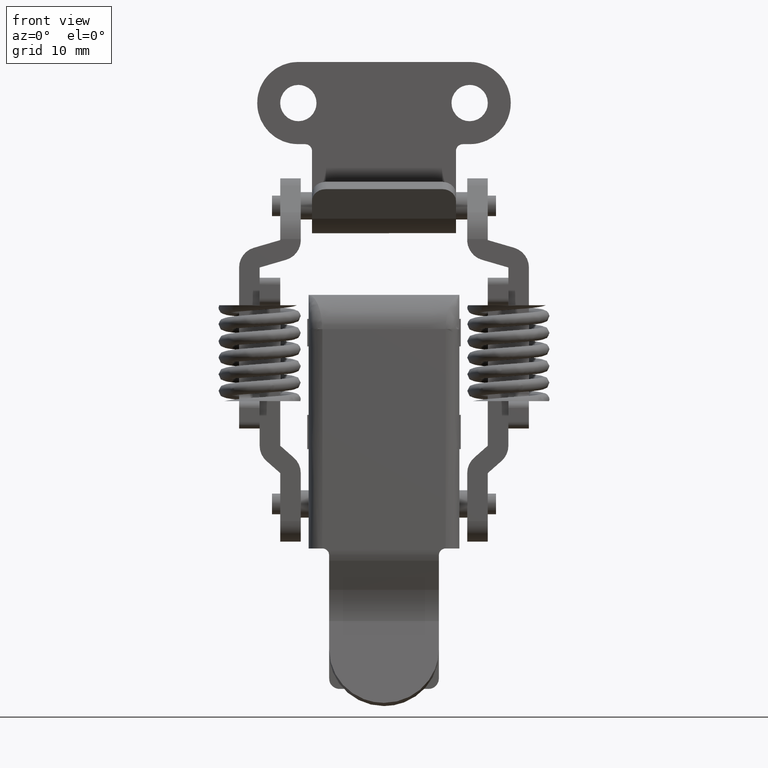
[diagram: clean part render]
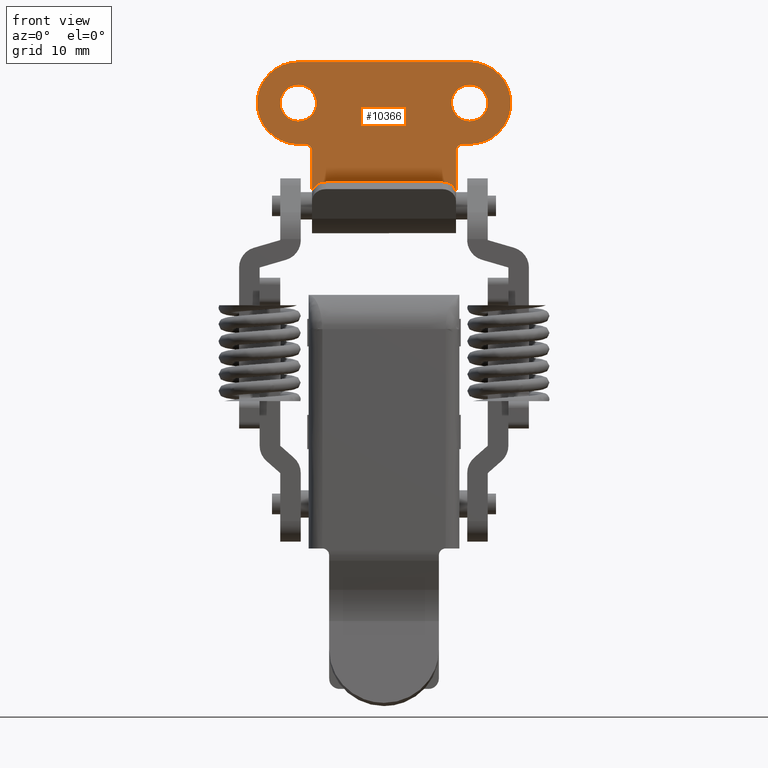
[diagram: same view with one face highlighted and labeled with its STEP entity id]
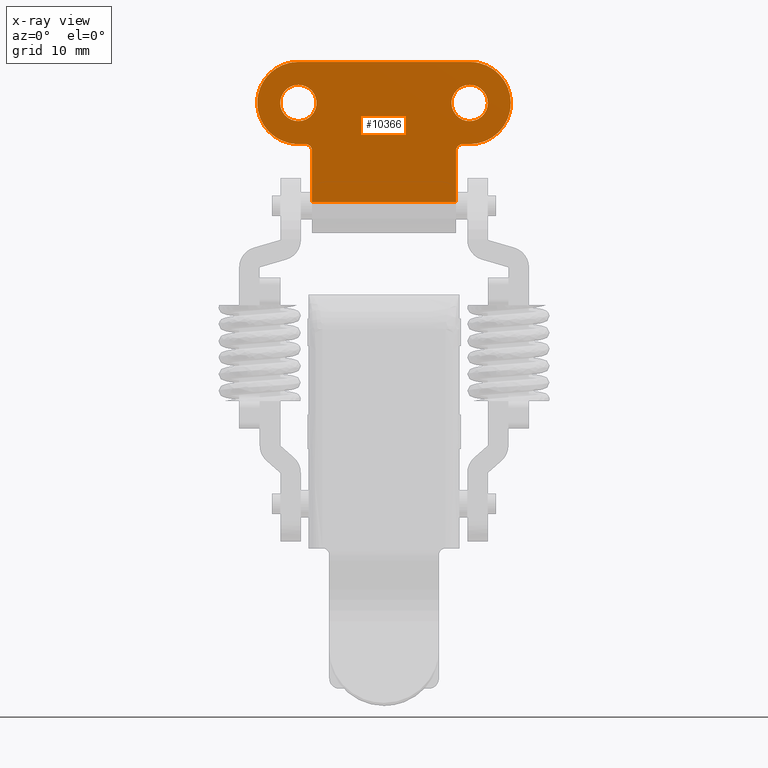
[diagram: x-ray of the same camera — body ghosted, the highlighted face saturated]
A machine part, front view. The second image highlights one B-rep face of the part: STEP entity #10366.
The next image is the same camera in x-ray: the body ghosted, the highlighted face saturated — about 0% of this face is hidden behind the body in this view.
In plain terms, the highlighted face is a freeform B-spline surface patch.
Its self-contained STEP definition (entity closure, byte-faithful):
#9226=CARTESIAN_POINT('',(2.499999999991597,14.523422810068210,13.288783436589920));
#9227=VERTEX_POINT('',#9226);
#9228=CARTESIAN_POINT('',(2.499999999999945,12.500000000000000,12.350000000000000));
#9229=VERTEX_POINT('',#9228);
#9230=CARTESIAN_POINT('',(2.499999999991597,14.523422810068210,13.288783436589920));
#9231=CARTESIAN_POINT('',(2.499999999992494,14.306835345629549,13.032157281827351));
#9232=CARTESIAN_POINT('',(2.499999999994369,13.850359478376641,12.664706489719689));
#9233=CARTESIAN_POINT('',(2.499999999997380,13.123548070721450,12.397030578544530));
#9234=CARTESIAN_POINT('',(2.499999999999146,12.691857899103130,12.349981396101480));
#9235=CARTESIAN_POINT('',(2.499999999999945,12.500000000000000,12.350000000000000));
#9236=B_SPLINE_CURVE_WITH_KNOTS('',3,(#9230,#9231,#9232,#9233,#9234,#9235),.UNSPECIFIED.,.F.,.U.,(4,1,1,4),(0.000000039350024,1.007286611248943,1.726756695406459,2.302342247426832),.UNSPECIFIED.);
#9237=EDGE_CURVE('',#9227,#9229,#9236,.T.);
#9239=CARTESIAN_POINT('',(2.499999999999945,9.850000000000442,15.000001527001460));
#9240=VERTEX_POINT('',#9239);
#9241=CARTESIAN_POINT('',(2.499999999999945,12.500000000000000,12.350000000000000));
#9242=CARTESIAN_POINT('',(2.499999999999946,12.283204268178689,12.349971530993271));
#9243=CARTESIAN_POINT('',(2.499999999999944,11.784525009751169,12.411433976181179));
#9244=CARTESIAN_POINT('',(2.499999999999943,11.158929085598730,12.679556126838680));
#9245=CARTESIAN_POINT('',(2.499999999999946,10.660942558693201,13.068394333897130));
#9246=CARTESIAN_POINT('',(2.499999999999945,10.319428610826520,13.464268299864081));
#9247=CARTESIAN_POINT('',(2.499999999999944,10.072472555625030,13.900235696775271));
#9248=CARTESIAN_POINT('',(2.499999999999945,9.895488167455131,14.414657534886141));
#9249=CARTESIAN_POINT('',(2.499999999999954,9.849948446987238,14.783195150864319));
#9250=CARTESIAN_POINT('',(2.499999999999945,9.850000000000442,15.000001527001460));
#9251=B_SPLINE_CURVE_WITH_KNOTS('',3,(#9241,#9242,#9243,#9244,#9245,#9246,#9247,#9248,#9249,#9250),.UNSPECIFIED.,.F.,.U.,(4,1,1,1,1,1,1,4),(0.000000050669638,0.650420601499359,1.495980702797743,2.016318695154697,2.536648275005632,3.056994142481446,3.512295033035097,4.162715583151159),.UNSPECIFIED.);
#9252=EDGE_CURVE('',#9229,#9240,#9251,.T.);
#9254=CARTESIAN_POINT('',(2.499999999999945,12.500000000000000,17.649999999999999));
#9255=VERTEX_POINT('',#9254);
#9256=CARTESIAN_POINT('',(2.499999999999945,9.850000000000442,15.000001527001460));
#9257=CARTESIAN_POINT('',(2.499999999999948,9.849856774500241,15.281860808402209));
#9258=CARTESIAN_POINT('',(2.499999999999943,9.937287119896761,15.823778187694691));
#9259=CARTESIAN_POINT('',(2.499999999999944,10.262419924937319,16.469804688013038));
#9260=CARTESIAN_POINT('',(2.499999999999949,10.660952612324300,16.931617415669390));
#9261=CARTESIAN_POINT('',(2.499999999999942,11.073117493497000,17.253276039472478));
#9262=CARTESIAN_POINT('',(2.499999999999945,11.676318300618391,17.557048825565950));
#9263=CARTESIAN_POINT('',(2.499999999999947,12.174754369222800,17.650247222138692));
#9264=CARTESIAN_POINT('',(2.499999999999945,12.500000000000000,17.649999999999999));
#9265=B_SPLINE_CURVE_WITH_KNOTS('',3,(#9256,#9257,#9258,#9259,#9260,#9261,#9262,#9263,#9264),.UNSPECIFIED.,.F.,.U.,(4,1,1,1,1,1,4),(0.000000052758711,0.845550204636312,1.626066688392250,2.146396051881279,2.666733828409806,3.187077940185549,4.162713861821691),.UNSPECIFIED.);
#9266=EDGE_CURVE('',#9240,#9255,#9265,.T.);
#9268=CARTESIAN_POINT('',(2.500000000009410,14.324139445818400,16.922241728218669));
#9269=VERTEX_POINT('',#9268);
#9270=CARTESIAN_POINT('',(2.499999999999945,12.500000000000000,17.649999999999999));
#9271=CARTESIAN_POINT('',(2.500000000000927,12.688620922986290,17.650030675745221));
#9272=CARTESIAN_POINT('',(2.500000000002772,13.044879655339900,17.611791035323929));
#9273=CARTESIAN_POINT('',(2.500000000006105,13.686799581620271,17.407350166263559));
#9274=CARTESIAN_POINT('',(2.500000000008220,14.096258424211911,17.138860944815381));
#9275=CARTESIAN_POINT('',(2.500000000009410,14.324139445818400,16.922241728218669));
#9276=B_SPLINE_CURVE_WITH_KNOTS('',3,(#9270,#9271,#9272,#9273,#9274,#9275),.UNSPECIFIED.,.F.,.U.,(4,1,1,4),(0.000000013339829,0.565868128991654,1.068861656854470,2.011975442329569),.UNSPECIFIED.);
#9277=EDGE_CURVE('',#9255,#9269,#9276,.T.);
#9359=CARTESIAN_POINT('',(2.499999999999945,15.149999999999560,14.999998472998531));
#9360=VERTEX_POINT('',#9359);
#9361=CARTESIAN_POINT('',(2.499999999999945,15.149999999999560,14.999998472998531));
#9362=CARTESIAN_POINT('',(2.499999999998527,15.150178413353171,14.709304309211371));
#9363=CARTESIAN_POINT('',(2.499999999995503,15.046880218848290,14.089353929010819));
#9364=CARTESIAN_POINT('',(2.499999999992823,14.736425775338599,13.540143071821770));
#9365=CARTESIAN_POINT('',(2.499999999991597,14.523422810068210,13.288783436589920));
#9366=B_SPLINE_CURVE_WITH_KNOTS('',3,(#9361,#9362,#9363,#9364,#9365),.UNSPECIFIED.,.F.,.U.,(4,1,4),(0.000000016643074,0.872029036416337,1.860321759341806),.UNSPECIFIED.);
#9367=EDGE_CURVE('',#9360,#9227,#9366,.T.);
#9391=CARTESIAN_POINT('',(2.500000000009410,14.324139445818400,16.922241728218669));
#9392=CARTESIAN_POINT('',(2.500000000008432,14.535541847184820,16.721874220027090));
#9393=CARTESIAN_POINT('',(2.500000000006716,14.795280846991020,16.377407769989919));
#9394=CARTESIAN_POINT('',(2.500000000003487,15.079065730630150,15.716774794802770));
#9395=CARTESIAN_POINT('',(2.500000000001353,15.150203397591900,15.291276272656409));
#9396=CARTESIAN_POINT('',(2.499999999999945,15.149999999999560,14.999998472998531));
#9397=B_SPLINE_CURVE_WITH_KNOTS('',3,(#9391,#9392,#9393,#9394,#9395,#9396),.UNSPECIFIED.,.F.,.U.,(4,1,1,4),(0.000000031615699,0.873728300071831,1.276969369835128,2.150697638341452),.UNSPECIFIED.);
#9398=EDGE_CURVE('',#9269,#9360,#9397,.T.);
#9429=CARTESIAN_POINT('',(2.499999999991598,-10.476577189931790,13.288783436589920));
#9430=VERTEX_POINT('',#9429);
#9431=CARTESIAN_POINT('',(2.499999999999945,-12.500000000000000,12.350000000000000));
#9432=VERTEX_POINT('',#9431);
#9433=CARTESIAN_POINT('',(2.499999999991598,-10.476577189931790,13.288783436589920));
#9434=CARTESIAN_POINT('',(2.499999999992173,-10.615916754142351,13.123934486204609));
#9435=CARTESIAN_POINT('',(2.499999999993313,-10.890869023648140,12.869652920698300));
#9436=CARTESIAN_POINT('',(2.499999999995348,-11.387591214439510,12.574426648538910));
#9437=CARTESIAN_POINT('',(2.499999999997530,-11.912437892473029,12.393143432654069));
#9438=CARTESIAN_POINT('',(2.499999999999153,-12.308138425026829,12.349969945160350));
#9439=CARTESIAN_POINT('',(2.499999999999945,-12.500000000000000,12.350000000000000));
#9440=B_SPLINE_CURVE_WITH_KNOTS('',3,(#9433,#9434,#9435,#9436,#9437,#9438,#9439),.UNSPECIFIED.,.F.,.U.,(4,1,1,1,4),(0.000000039348079,0.647535171286256,1.115216270434430,1.726756695406235,2.302342247426846),.UNSPECIFIED.);
#9441=EDGE_CURVE('',#9430,#9432,#9440,.T.);
#9443=CARTESIAN_POINT('',(2.499999999999945,-15.149999999999560,15.000001527001460));
#9444=VERTEX_POINT('',#9443);
#9445=CARTESIAN_POINT('',(2.499999999999945,-12.500000000000000,12.350000000000000));
#9446=CARTESIAN_POINT('',(2.499999999999941,-12.781866748688300,12.349849243806780));
#9447=CARTESIAN_POINT('',(2.499999999999951,-13.193684462491230,12.416347488250230));
#9448=CARTESIAN_POINT('',(2.499999999999945,-13.735956961492469,12.641028423212029));
#9449=CARTESIAN_POINT('',(2.499999999999941,-14.177705543688230,12.920700987595520));
#9450=CARTESIAN_POINT('',(2.499999999999944,-14.610213625428120,13.353168238664500));
#9451=CARTESIAN_POINT('',(2.499999999999959,-14.935876593788899,13.896542461123589));
#9452=CARTESIAN_POINT('',(2.499999999999932,-15.113697508645270,14.457998758892330));
#9453=CARTESIAN_POINT('',(2.499999999999954,-15.150020344034299,14.826561911584420));
#9454=CARTESIAN_POINT('',(2.499999999999945,-15.149999999999560,15.000001527001460));
#9455=B_SPLINE_CURVE_WITH_KNOTS('',3,(#9445,#9446,#9447,#9448,#9449,#9450,#9451,#9452,#9453,#9454),.UNSPECIFIED.,.F.,.U.,(4,1,1,1,1,1,1,4),(0.000000050665429,0.845550552797639,1.235807314996755,1.756153185548479,2.406562450377335,3.056994142480738,3.642381858811953,4.162715583151186),.UNSPECIFIED.);
#9456=EDGE_CURVE('',#9432,#9444,#9455,.T.);
#9458=CARTESIAN_POINT('',(2.499999999999945,-12.500000000000000,17.649999999999999));
#9459=VERTEX_POINT('',#9458);
#9460=CARTESIAN_POINT('',(2.499999999999945,-15.149999999999560,15.000001527001460));
#9461=CARTESIAN_POINT('',(2.499999999999947,-15.150242182698021,15.325244710180240));
#9462=CARTESIAN_POINT('',(2.499999999999945,-15.057063380212950,15.823688939465990));
#9463=CARTESIAN_POINT('',(2.499999999999947,-14.772851624236960,16.387960573087710));
#9464=CARTESIAN_POINT('',(2.499999999999942,-14.487972849399069,16.772104555903532));
#9465=CARTESIAN_POINT('',(2.499999999999954,-14.140881202316370,17.102595693098088));
#9466=CARTESIAN_POINT('',(2.499999999999924,-13.735959773087350,17.358975209828660));
#9467=CARTESIAN_POINT('',(2.499999999999993,-13.193683212676239,17.583654397219309));
#9468=CARTESIAN_POINT('',(2.499999999999898,-12.781867570068540,17.650149377485910));
#9469=CARTESIAN_POINT('',(2.499999999999945,-12.500000000000000,17.649999999999999));
#9470=B_SPLINE_CURVE_WITH_KNOTS('',3,(#9460,#9461,#9462,#9463,#9464,#9465,#9466,#9467,#9468,#9469),.UNSPECIFIED.,.F.,.U.,(4,1,1,1,1,1,1,4),(0.000000052760421,0.975635974217337,1.495980084832347,1.886236566518915,2.406561453332977,2.926907108806309,3.317163709479213,4.162713861821660),.UNSPECIFIED.);
#9471=EDGE_CURVE('',#9444,#9459,#9470,.T.);
#9473=CARTESIAN_POINT('',(2.500000000009410,-10.675860554181600,16.922241728218669));
#9474=VERTEX_POINT('',#9473);
#9475=CARTESIAN_POINT('',(2.499999999999945,-12.500000000000000,17.649999999999999));
#9476=CARTESIAN_POINT('',(2.500000000001574,-12.185591435178679,17.650265399048600));
#9477=CARTESIAN_POINT('',(2.500000000004078,-11.703761209803091,17.563171728636920));
#9478=CARTESIAN_POINT('',(2.500000000007222,-11.097406073580769,17.269593172852051));
#9479=CARTESIAN_POINT('',(2.500000000008700,-10.812658846324929,17.052105003095409));
#9480=CARTESIAN_POINT('',(2.500000000009410,-10.675860554181600,16.922241728218669));
#9481=B_SPLINE_CURVE_WITH_KNOTS('',3,(#9475,#9476,#9477,#9478,#9479,#9480),.UNSPECIFIED.,.F.,.U.,(4,1,1,4),(0.000000013340391,0.943113798862806,1.446107326683859,2.011975442329576),.UNSPECIFIED.);
#9482=EDGE_CURVE('',#9459,#9474,#9481,.T.);
#9565=CARTESIAN_POINT('',(2.499999999999945,-9.850000000000442,14.999998472998540));
#9566=VERTEX_POINT('',#9565);
#9567=CARTESIAN_POINT('',(2.499999999999945,-9.850000000000442,14.999998472998540));
#9568=CARTESIAN_POINT('',(2.499999999998717,-9.849900621678509,14.748070372493411));
#9569=CARTESIAN_POINT('',(2.499999999996735,-9.908486828151350,14.341198275796490));
#9570=CARTESIAN_POINT('',(2.499999999993899,-10.135308550213930,13.761500611707881));
#9571=CARTESIAN_POINT('',(2.499999999992395,-10.338889918756969,13.451512173579131));
#9572=CARTESIAN_POINT('',(2.499999999991598,-10.476577189931790,13.288783436589920));
#9573=B_SPLINE_CURVE_WITH_KNOTS('',3,(#9567,#9568,#9569,#9570,#9571,#9572),.UNSPECIFIED.,.F.,.U.,(4,1,1,4),(0.000000016642658,0.755761889321203,1.220830819730056,1.860321759341804),.UNSPECIFIED.);
#9574=EDGE_CURVE('',#9566,#9430,#9573,.T.);
#9598=CARTESIAN_POINT('',(2.500000000009410,-10.675860554181600,16.922241728218669));
#9599=CARTESIAN_POINT('',(2.500000000008239,-10.423667232683769,16.683433431568059));
#9600=CARTESIAN_POINT('',(2.500000000006066,-10.114540576398360,16.244805165341649));
#9601=CARTESIAN_POINT('',(2.500000000002713,-9.890033067333235,15.560044553761390));
#9602=CARTESIAN_POINT('',(2.500000000000874,-9.849966723101694,15.190426093183500));
#9603=CARTESIAN_POINT('',(2.499999999999945,-9.850000000000442,14.999998472998540));
#9604=B_SPLINE_CURVE_WITH_KNOTS('',3,(#9598,#9599,#9600,#9601,#9602,#9603),.UNSPECIFIED.,.F.,.U.,(4,1,1,4),(0.000000031611892,1.041761962419701,1.579418361858561,2.150697638341472),.UNSPECIFIED.);
#9605=EDGE_CURVE('',#9474,#9566,#9604,.T.);
#9639=CARTESIAN_POINT('',(2.500000000000000,-11.500000000000000,9.0));
#9640=VERTEX_POINT('',#9639);
#9646=CARTESIAN_POINT('',(2.500000000000000,-10.500000000000000,8.0));
#9647=VERTEX_POINT('',#9646);
#9648=CARTESIAN_POINT('',(2.500000000000000,-10.500000000000000,8.0));
#9649=CARTESIAN_POINT('',(2.499999999999996,-10.499885071363931,8.122737199496450));
#9650=CARTESIAN_POINT('',(2.499999999999985,-10.536627932696449,8.318995729046645));
#9651=CARTESIAN_POINT('',(2.499999999999985,-10.676881922767100,8.589347594859412));
#9652=CARTESIAN_POINT('',(2.499999999999956,-10.879840010429881,8.807952125593571));
#9653=CARTESIAN_POINT('',(2.500000000000027,-11.172772055172130,8.964445593157127));
#9654=CARTESIAN_POINT('',(2.499999999999956,-11.393639405862430,9.000053192101408));
#9655=CARTESIAN_POINT('',(2.500000000000000,-11.500000000000000,9.0));
#9656=B_SPLINE_CURVE_WITH_KNOTS('',3,(#9648,#9649,#9650,#9651,#9652,#9653,#9654,#9655),.UNSPECIFIED.,.F.,.U.,(4,1,1,1,1,4),(0.000000217521302,0.368162749588600,0.589067098175157,0.908124979463977,1.251763102711212,1.570835744366268),.UNSPECIFIED.);
#9657=EDGE_CURVE('',#9647,#9640,#9656,.T.);
#9696=CARTESIAN_POINT('',(2.500000000000000,10.500000000000000,8.0));
#9697=VERTEX_POINT('',#9696);
#9703=CARTESIAN_POINT('',(2.500000000000000,11.500000000000000,9.0));
#9704=VERTEX_POINT('',#9703);
#9705=CARTESIAN_POINT('',(2.500000000000000,11.500000000000000,9.0));
#9706=CARTESIAN_POINT('',(2.499999999999995,11.393648359136391,9.000035305273501));
#9707=CARTESIAN_POINT('',(2.499999999999983,11.156373345456410,8.961877574387815));
#9708=CARTESIAN_POINT('',(2.499999999999979,10.851601879203169,8.789267632733420));
#9709=CARTESIAN_POINT('',(2.499999999999972,10.648953575974931,8.548248883530818));
#9710=CARTESIAN_POINT('',(2.499999999999994,10.529002212656099,8.286310353382136));
#9711=CARTESIAN_POINT('',(2.499999999999977,10.499940611355330,8.106361567072625));
#9712=CARTESIAN_POINT('',(2.500000000000000,10.500000000000000,8.0));
#9713=B_SPLINE_CURVE_WITH_KNOTS('',3,(#9705,#9706,#9707,#9708,#9709,#9710,#9711,#9712),.UNSPECIFIED.,.F.,.U.,(4,1,1,1,1,4),(0.000000217520839,0.319072859176031,0.711795380199760,1.030849341465634,1.251763102711156,1.570835744366270),.UNSPECIFIED.);
#9714=EDGE_CURVE('',#9704,#9697,#9713,.T.);
#9860=CARTESIAN_POINT('',(2.500000000000000,-12.500000000000000,21.0));
#9861=VERTEX_POINT('',#9860);
#9869=CARTESIAN_POINT('',(2.500000000000000,-18.499999999999918,15.000001018057601));
#9870=VERTEX_POINT('',#9869);
#9871=CARTESIAN_POINT('',(2.500000000000000,-18.499999999999918,15.000001018057601));
#9872=CARTESIAN_POINT('',(2.500000000000007,-18.500292847073830,15.589092837612480));
#9873=CARTESIAN_POINT('',(2.499999999999997,-18.379732377514571,16.398867945676461));
#9874=CARTESIAN_POINT('',(2.500000000000001,-17.992217628861891,17.461143468278959));
#9875=CARTESIAN_POINT('',(2.500000000000003,-17.590654004993951,18.223621796931880));
#9876=CARTESIAN_POINT('',(2.500000000000013,-16.895714894026550,19.148968432024329));
#9877=CARTESIAN_POINT('',(2.499999999999994,-15.889177242090961,20.028081770234198));
#9878=CARTESIAN_POINT('',(2.500000000000011,-14.652181943386870,20.650662925898072));
#9879=CARTESIAN_POINT('',(2.499999999999983,-13.506281003676939,20.945060708526530));
#9880=CARTESIAN_POINT('',(2.500000000000028,-12.819065572835809,21.000015665075729));
#9881=CARTESIAN_POINT('',(2.500000000000000,-12.500000000000000,21.0));
#9882=B_SPLINE_CURVE_WITH_KNOTS('',3,(#9871,#9872,#9873,#9874,#9875,#9876,#9877,#9878,#9879,#9880,#9881),.UNSPECIFIED.,.F.,.U.,(4,1,1,1,1,1,1,1,4),(0.000000082112996,1.767156522332948,2.429842197444438,3.387059662474314,4.344263492432337,5.890504971896557,7.363158455707513,8.467632969280720,9.424836523456158),.UNSPECIFIED.);
#9883=EDGE_CURVE('',#9870,#9861,#9882,.T.);
#9885=CARTESIAN_POINT('',(2.500000000000000,-12.500000000000000,9.0));
#9886=VERTEX_POINT('',#9885);
#9887=CARTESIAN_POINT('',(2.500000000000000,-12.500000000000000,9.0));
#9888=CARTESIAN_POINT('',(2.500000000000003,-12.843605553581900,8.999974794222688));
#9889=CARTESIAN_POINT('',(2.499999999999998,-13.530822923906610,9.059184238952970));
#9890=CARTESIAN_POINT('',(2.500000000000000,-14.459838675825390,9.304042127746843));
#9891=CARTESIAN_POINT('',(2.499999999999990,-15.361852663711540,9.697272685354751));
#9892=CARTESIAN_POINT('',(2.500000000000034,-16.170806208416131,10.216500222061200));
#9893=CARTESIAN_POINT('',(2.499999999999949,-16.950885076424779,10.932322924459520));
#9894=CARTESIAN_POINT('',(2.500000000000060,-17.673119758131740,11.869400849721231));
#9895=CARTESIAN_POINT('',(2.499999999999923,-18.318159598897719,13.233022291588190));
#9896=CARTESIAN_POINT('',(2.500000000000024,-18.500323804387989,14.361833405587181));
#9897=CARTESIAN_POINT('',(2.500000000000000,-18.499999999999918,15.000001018057601));
#9898=B_SPLINE_CURVE_WITH_KNOTS('',3,(#9887,#9888,#9889,#9890,#9891,#9892,#9893,#9894,#9895,#9896,#9897),.UNSPECIFIED.,.F.,.U.,(4,1,1,1,1,1,1,1,4),(0.000000081763176,1.030820088439770,2.061684213137789,2.871639251703165,3.976111703024825,4.933283250428821,6.037779893853490,7.510418758599437,9.424837671051492),.UNSPECIFIED.);
#9899=EDGE_CURVE('',#9886,#9870,#9898,.T.);
#9995=CARTESIAN_POINT('',(2.500000000000000,12.500000000000000,9.0));
#9996=VERTEX_POINT('',#9995);
#10002=CARTESIAN_POINT('',(2.500000000000000,18.499999999999918,14.999998981942390));
#10003=VERTEX_POINT('',#10002);
#10004=CARTESIAN_POINT('',(2.500000000000000,18.499999999999918,14.999998981942390));
#10005=CARTESIAN_POINT('',(2.500000000000004,18.500172937435089,14.460019056562009));
#10006=CARTESIAN_POINT('',(2.500000000000000,18.389907931360209,13.650183880377149));
#10007=CARTESIAN_POINT('',(2.500000000000009,18.015142276701919,12.582448770317139));
#10008=CARTESIAN_POINT('',(2.499999999999978,17.499013078257700,11.601989576777930));
#10009=CARTESIAN_POINT('',(2.500000000000032,16.723943779060171,10.669406844964280));
#10010=CARTESIAN_POINT('',(2.499999999999973,15.669617468264869,9.857008379679714));
#10011=CARTESIAN_POINT('',(2.500000000000042,14.604421558836449,9.337091575825131));
#10012=CARTESIAN_POINT('',(2.499999999999937,13.506283305633740,9.054940167481853));
#10013=CARTESIAN_POINT('',(2.500000000000088,12.819066320433279,8.999979487821200));
#10014=CARTESIAN_POINT('',(2.500000000000000,12.500000000000000,9.0));
#10015=B_SPLINE_CURVE_WITH_KNOTS('',3,(#10004,#10005,#10006,#10007,#10008,#10009,#10010,#10011,#10012,#10013,#10014),.UNSPECIFIED.,.F.,.U.,(4,1,1,1,1,1,1,1,4),(0.000000082117488,1.619881983833523,2.429842197447269,3.387059662476491,4.933282649190297,6.037779159362161,7.363158455707434,8.467632969280656,9.424836523456092),.UNSPECIFIED.);
#10016=EDGE_CURVE('',#10003,#9996,#10015,.T.);
#10018=CARTESIAN_POINT('',(2.500000000000000,12.500000000000000,21.0));
#10019=VERTEX_POINT('',#10018);
#10020=CARTESIAN_POINT('',(2.500000000000000,12.500000000000000,21.0));
#10021=CARTESIAN_POINT('',(2.500000000000001,12.843605515189520,21.000028147091641));
#10022=CARTESIAN_POINT('',(2.500000000000008,13.530824328907560,20.940813578806949));
#10023=CARTESIAN_POINT('',(2.499999999999982,14.412192197323590,20.708513035131951));
#10024=CARTESIAN_POINT('',(2.500000000000014,15.227666849203191,20.364841949872108));
#10025=CARTESIAN_POINT('',(2.499999999999995,16.054338786661791,19.876284797431719));
#10026=CARTESIAN_POINT('',(2.499999999999990,16.853552086802480,19.178270863185212));
#10027=CARTESIAN_POINT('',(2.500000000000028,17.616969404950030,18.212420812864980));
#10028=CARTESIAN_POINT('',(2.499999999999990,18.150659502121130,17.152186276347422));
#10029=CARTESIAN_POINT('',(2.500000000000012,18.445063493325460,16.006281132192981));
#10030=CARTESIAN_POINT('',(2.500000000000001,18.500018297998331,15.319064708071840));
#10031=CARTESIAN_POINT('',(2.500000000000000,18.499999999999918,14.999998981942390));
#10032=B_SPLINE_CURVE_WITH_KNOTS('',3,(#10020,#10021,#10022,#10023,#10024,#10025,#10026,#10027,#10028,#10029,#10030,#10031),.UNSPECIFIED.,.F.,.U.,(4,1,1,1,1,1,1,1,1,4),(0.000000081763515,1.030820088440020,2.061684213137982,2.724370197082681,3.681581302913690,4.933283250428634,5.890505689552764,7.363159352452369,8.467634000760539,9.424837671051501),.UNSPECIFIED.);
#10033=EDGE_CURVE('',#10019,#10003,#10032,.T.);
#10054=CARTESIAN_POINT('',(2.500000000000000,11.500000000000000,9.0));
#10055=CARTESIAN_POINT('',(2.500000000000000,12.500000000000000,9.0));
#10056=QUASI_UNIFORM_CURVE('',1,(#10054,#10055),.UNSPECIFIED.,.F.,.U.);
#10057=EDGE_CURVE('',#9704,#9996,#10056,.T.);
#10068=CARTESIAN_POINT('',(2.500000000000000,10.500000000000000,0.499999999999801));
#10069=VERTEX_POINT('',#10068);
#10070=CARTESIAN_POINT('',(2.500000000000000,10.500000000000000,0.499999999999801));
#10071=CARTESIAN_POINT('',(2.500000000000000,10.500000000000000,8.0));
#10072=QUASI_UNIFORM_CURVE('',1,(#10070,#10071),.UNSPECIFIED.,.F.,.U.);
#10073=EDGE_CURVE('',#10069,#9697,#10072,.T.);
#10149=CARTESIAN_POINT('',(2.500000000000000,-12.500000000000000,9.0));
#10150=CARTESIAN_POINT('',(2.500000000000000,-11.500000000000000,9.0));
#10151=QUASI_UNIFORM_CURVE('',1,(#10149,#10150),.UNSPECIFIED.,.F.,.U.);
#10152=EDGE_CURVE('',#9886,#9640,#10151,.T.);
#10177=CARTESIAN_POINT('',(2.500000000000000,-10.500000000000000,0.499999999999801));
#10178=VERTEX_POINT('',#10177);
#10179=CARTESIAN_POINT('',(2.500000000000000,-10.500000000000000,8.0));
#10180=CARTESIAN_POINT('',(2.500000000000000,-10.500000000000000,0.499999999999801));
#10181=QUASI_UNIFORM_CURVE('',1,(#10179,#10180),.UNSPECIFIED.,.F.,.U.);
#10182=EDGE_CURVE('',#9647,#10178,#10181,.T.);
#10255=CARTESIAN_POINT('',(2.500000000000000,-12.500000000000000,21.0));
#10256=CARTESIAN_POINT('',(2.500000000000000,12.500000000000000,21.0));
#10257=QUASI_UNIFORM_CURVE('',1,(#10255,#10256),.UNSPECIFIED.,.F.,.U.);
#10258=EDGE_CURVE('',#9861,#10019,#10257,.T.);
#10320=CARTESIAN_POINT('',(2.500000000000000,-10.500000000000000,0.499999999999801));
#10321=CARTESIAN_POINT('',(2.500000000000000,10.500000000000000,0.499999999999801));
#10322=QUASI_UNIFORM_CURVE('',1,(#10320,#10321),.UNSPECIFIED.,.F.,.U.);
#10323=EDGE_CURVE('',#10178,#10069,#10322,.T.);
#10331=CARTESIAN_POINT('',(2.500000000000000,-20.348149928286730,22.023974960267040));
#10332=CARTESIAN_POINT('',(2.500000000000000,-20.348149928286730,-0.523975510120079));
#10333=CARTESIAN_POINT('',(2.500000000000000,20.348150920704072,22.023974960267040));
#10334=CARTESIAN_POINT('',(2.500000000000000,20.348150920704072,-0.523975510120079));
#10335=B_SPLINE_SURFACE_WITH_KNOTS('',1,1,((#10331,#10333),(#10332,#10334)),.UNSPECIFIED.,.F.,.F.,.U.,(2,2),(2,2),(0.0,22.547950470387111),(0.0,40.696300848990802),.UNSPECIFIED.);
#10336=ORIENTED_EDGE('',*,*,#10033,.T.);
#10337=ORIENTED_EDGE('',*,*,#10016,.T.);
#10338=ORIENTED_EDGE('',*,*,#10057,.F.);
#10339=ORIENTED_EDGE('',*,*,#9714,.T.);
#10340=ORIENTED_EDGE('',*,*,#10073,.F.);
#10341=ORIENTED_EDGE('',*,*,#10323,.F.);
#10342=ORIENTED_EDGE('',*,*,#10182,.F.);
#10343=ORIENTED_EDGE('',*,*,#9657,.T.);
#10344=ORIENTED_EDGE('',*,*,#10152,.F.);
#10345=ORIENTED_EDGE('',*,*,#9899,.T.);
#10346=ORIENTED_EDGE('',*,*,#9883,.T.);
#10347=ORIENTED_EDGE('',*,*,#10258,.T.);
#10348=EDGE_LOOP('',(#10336,#10337,#10338,#10339,#10340,#10341,#10342,#10343,#10344,#10345,#10346,#10347));
#10349=FACE_OUTER_BOUND('',#10348,.T.);
#10350=ORIENTED_EDGE('',*,*,#9456,.F.);
#10351=ORIENTED_EDGE('',*,*,#9441,.F.);
#10352=ORIENTED_EDGE('',*,*,#9574,.F.);
#10353=ORIENTED_EDGE('',*,*,#9605,.F.);
#10354=ORIENTED_EDGE('',*,*,#9482,.F.);
#10355=ORIENTED_EDGE('',*,*,#9471,.F.);
#10356=EDGE_LOOP('',(#10350,#10351,#10352,#10353,#10354,#10355));
#10357=FACE_BOUND('',#10356,.T.);
#10358=ORIENTED_EDGE('',*,*,#9252,.F.);
#10359=ORIENTED_EDGE('',*,*,#9237,.F.);
#10360=ORIENTED_EDGE('',*,*,#9367,.F.);
#10361=ORIENTED_EDGE('',*,*,#9398,.F.);
#10362=ORIENTED_EDGE('',*,*,#9277,.F.);
#10363=ORIENTED_EDGE('',*,*,#9266,.F.);
#10364=EDGE_LOOP('',(#10358,#10359,#10360,#10361,#10362,#10363));
#10365=FACE_BOUND('',#10364,.T.);
#10366=ADVANCED_FACE('',(#10349,#10357,#10365),#10335,.F.);